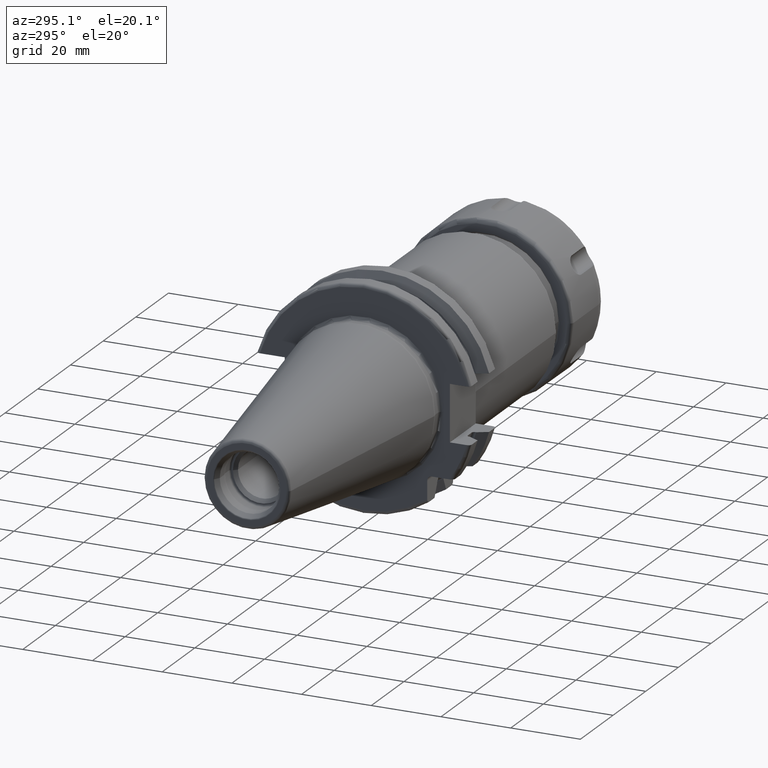
[diagram: clean part render]
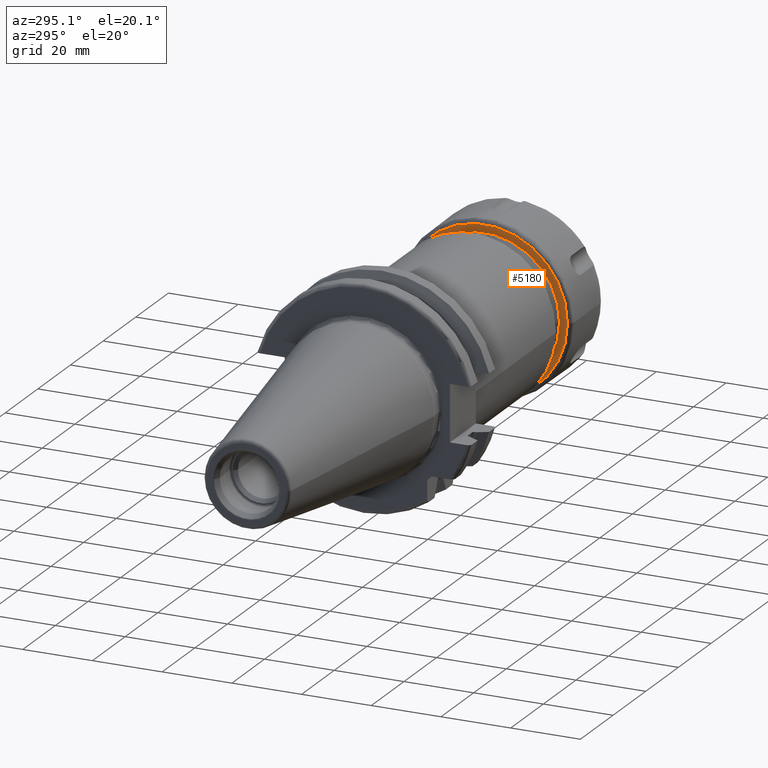
[diagram: same view with one face highlighted and labeled with its STEP entity id]
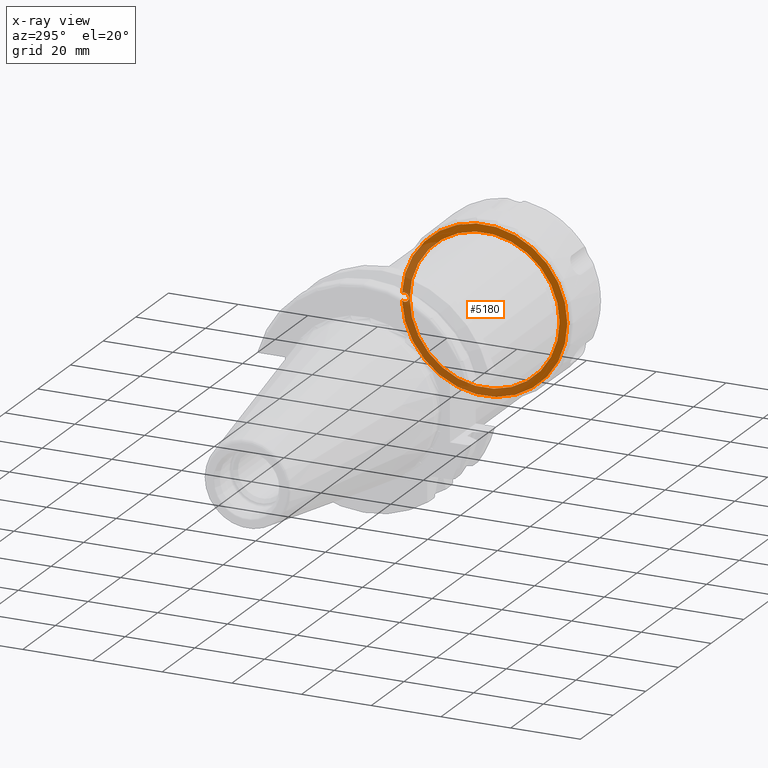
[diagram: x-ray of the same camera — body ghosted, the highlighted face saturated]
A machine part, auxiliary view. The second image highlights one B-rep face of the part: STEP entity #5180.
The next image is the same camera in x-ray: the body ghosted, the highlighted face saturated — about 47% of this face is hidden behind the body in this view.
In plain terms, the highlighted planar face has unit normal (-1, 0, 0).
Its self-contained STEP definition (entity closure, byte-faithful):
#3976=CARTESIAN_POINT('',(0.E0,0.E0,0.E0));
#3977=DIRECTION('',(-1.E0,0.E0,0.E0));
#3978=DIRECTION('',(0.E0,1.E0,0.E0));
#3979=AXIS2_PLACEMENT_3D('',#3976,#3977,#3978);
#3981=CARTESIAN_POINT('',(0.E0,0.E0,0.E0));
#3982=DIRECTION('',(-1.E0,0.E0,0.E0));
#3983=DIRECTION('',(0.E0,-1.E0,0.E0));
#3984=AXIS2_PLACEMENT_3D('',#3981,#3982,#3983);
#3986=CARTESIAN_POINT('',(0.E0,0.E0,0.E0));
#3987=DIRECTION('',(-1.E0,0.E0,0.E0));
#3988=DIRECTION('',(0.E0,9.990846681922E-1,-4.277646295853E-2));
#3989=AXIS2_PLACEMENT_3D('',#3986,#3987,#3988);
#3991=CARTESIAN_POINT('',(0.E0,0.E0,0.E0));
#3992=DIRECTION('',(1.E0,0.E0,0.E0));
#3993=DIRECTION('',(0.E0,9.990846681922E-1,4.277646295853E-2));
#3994=AXIS2_PLACEMENT_3D('',#3991,#3992,#3993);
#4006=CARTESIAN_POINT('',(0.E0,2.3E1,0.E0));
#4007=DIRECTION('',(1.E0,0.E0,0.E0));
#4008=DIRECTION('',(0.E0,5.826086956522E-1,8.127527962120E-1));
#4009=AXIS2_PLACEMENT_3D('',#4006,#4007,#4008);
#4254=CARTESIAN_POINT('',(0.E0,-2.375E1,0.E0));
#4256=VERTEX_POINT('',#4254);
#4313=CARTESIAN_POINT('',(0.E0,2.15E1,0.E0));
#4314=VERTEX_POINT('',#4313);
#4315=CARTESIAN_POINT('',(0.E0,-2.15E1,0.E0));
#4316=VERTEX_POINT('',#4315);
#4351=CARTESIAN_POINT('',(0.E0,2.372826086957E1,-1.015940995265E0));
#4352=VERTEX_POINT('',#4351);
#4353=CARTESIAN_POINT('',(0.E0,2.372826086957E1,1.015940995265E0));
#4354=VERTEX_POINT('',#4353);
#5165=CARTESIAN_POINT('',(0.E0,0.E0,0.E0));
#5166=DIRECTION('',(-1.E0,0.E0,0.E0));
#5167=DIRECTION('',(0.E0,1.E0,0.E0));
#5168=AXIS2_PLACEMENT_3D('',#5165,#5166,#5167);
#5169=PLANE('',#5168);
#5170=ORIENTED_EDGE('',*,*,#4434,.F.);
#5172=ORIENTED_EDGE('',*,*,#5171,.F.);
#5173=ORIENTED_EDGE('',*,*,#4452,.T.);
#5174=EDGE_LOOP('',(#5170,#5172,#5173));
#5175=FACE_OUTER_BOUND('',#5174,.F.);
#5176=ORIENTED_EDGE('',*,*,#5147,.T.);
#5177=ORIENTED_EDGE('',*,*,#5132,.T.);
#5178=EDGE_LOOP('',(#5176,#5177));
#5179=FACE_BOUND('',#5178,.F.);
#5180=ADVANCED_FACE('',(#5175,#5179),#5169,.T.);
#3980=CIRCLE('',#3979,2.15E1);
#3985=CIRCLE('',#3984,2.15E1);
#3990=CIRCLE('',#3989,2.375E1);
#3995=CIRCLE('',#3994,2.375E1);
#4010=CIRCLE('',#4009,1.25E0);
#4434=EDGE_CURVE('',#4352,#4256,#3990,.T.);
#4452=EDGE_CURVE('',#4354,#4256,#3995,.T.);
#5132=EDGE_CURVE('',#4316,#4314,#3985,.T.);
#5147=EDGE_CURVE('',#4314,#4316,#3980,.T.);
#5171=EDGE_CURVE('',#4354,#4352,#4010,.T.);